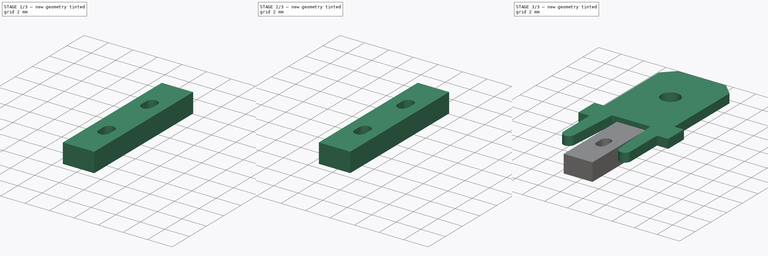
[diagram: build sequence overview — one tinted view per stage of 3, left to right]
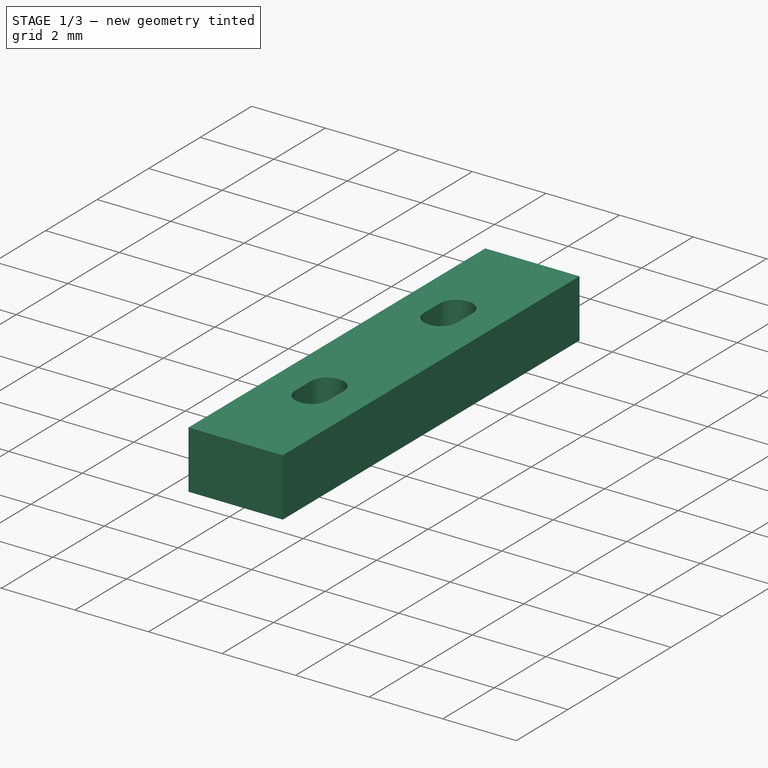
[diagram: stage 1 of 3 — iso view after this stage's code; geometry added in this stage tinted green]
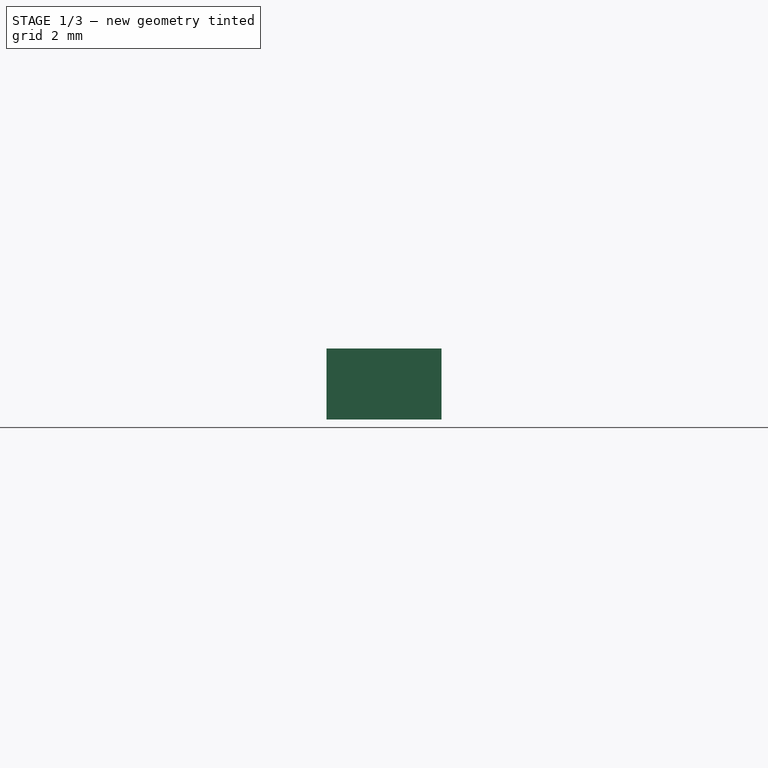
[diagram: stage 1 of 3 — front view after this stage's code; geometry added in this stage tinted green]
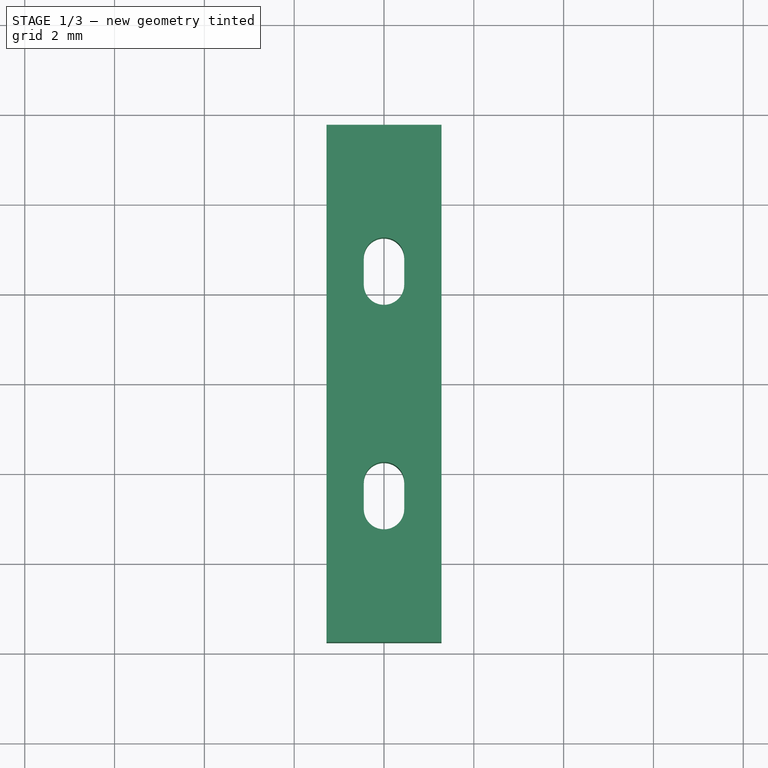
[diagram: stage 1 of 3 — top view after this stage's code; geometry added in this stage tinted green]
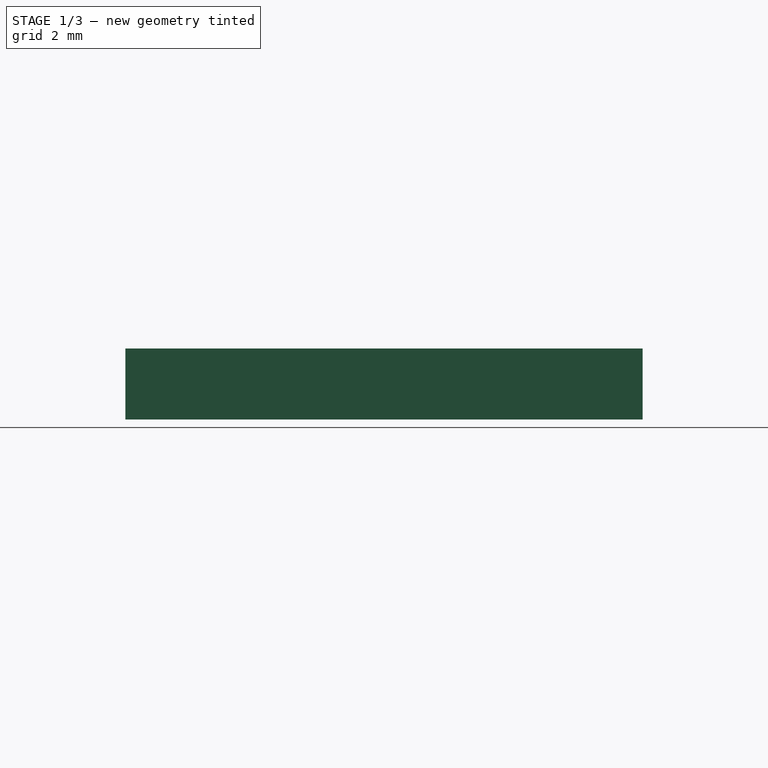
[diagram: stage 1 of 3 — right view after this stage's code; geometry added in this stage tinted green]
FCSTD DOCUMENT  (FreeCAD 0.17R13541 (Git))
Label: FLAT-TERM-6.3-STRAIGHT_ksu
License: All rights reserved
LicenseURL: http://fr.wikipedia.org/wiki/<copyright redacted>
objects: Part::FeaturePython×4, Sketcher::SketchObject×2, PartDesign::Pad×1, PartDesign::Body×1, App::DocumentObjectGroup×1, Part::Feature×1
note: 10 computed .brp shape members not serialized (recipe doc carries the construction recipe); baked Part::Feature solids carry a one-line shape summary decoded from their .brp

FEATURE [Part::FeaturePython] THPs001  label="PTHs001"  # a2plus imported part (geometry in sourceFile) (typed FeaturePython)
  fixedPosition = true
FEATURE [Part::FeaturePython] newPCB001  label="Pcb001"  # a2plus imported part (geometry in sourceFile) (typed FeaturePython)
  fixedPosition = true
FEATURE [App::DocumentObjectGroup] FLAT_TERM_6_3_STRAIGHT_fp001
  Group = -> [TopPads001,BotPads001,THPs001,newPCB001]
FEATURE [Part::Feature] Shape  label="FLAT-TERM-6.3-STRAIGHT"
  shape: bbox 0.8 x 8 x 13.85 mm, 23 faces (baked)
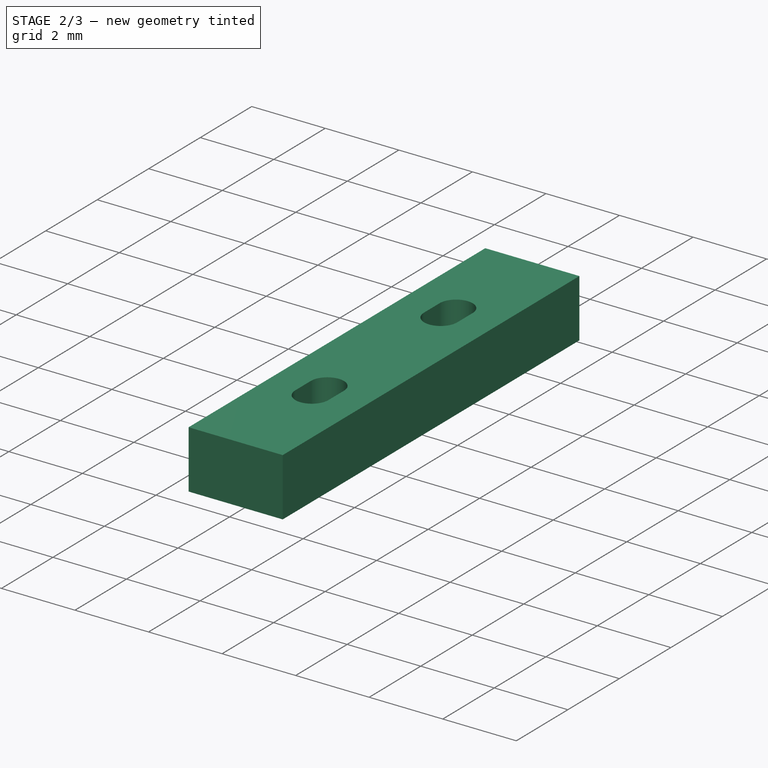
[diagram: stage 2 of 3 — iso view after this stage's code; geometry added in this stage tinted green]
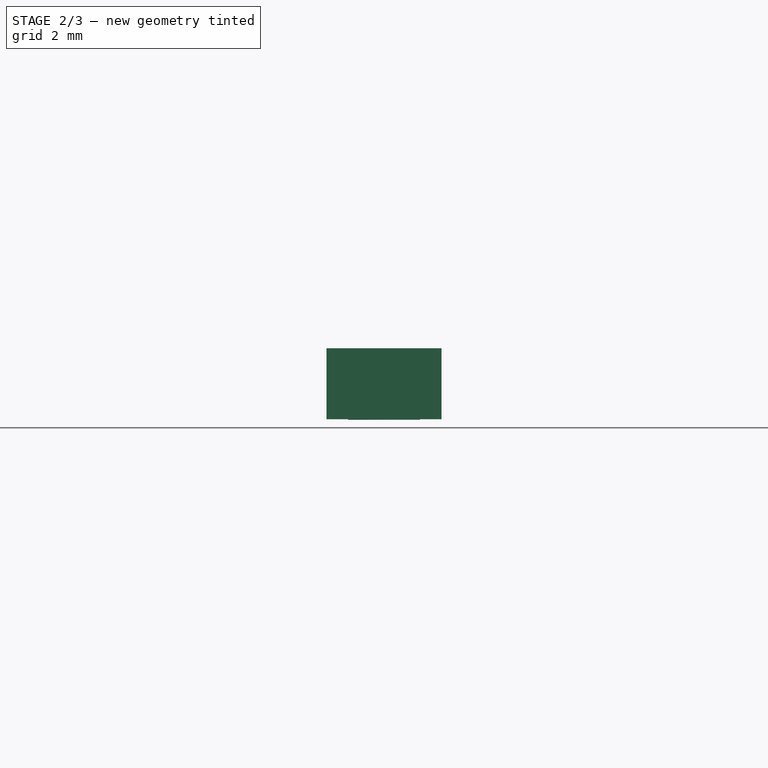
[diagram: stage 2 of 3 — front view after this stage's code; geometry added in this stage tinted green]
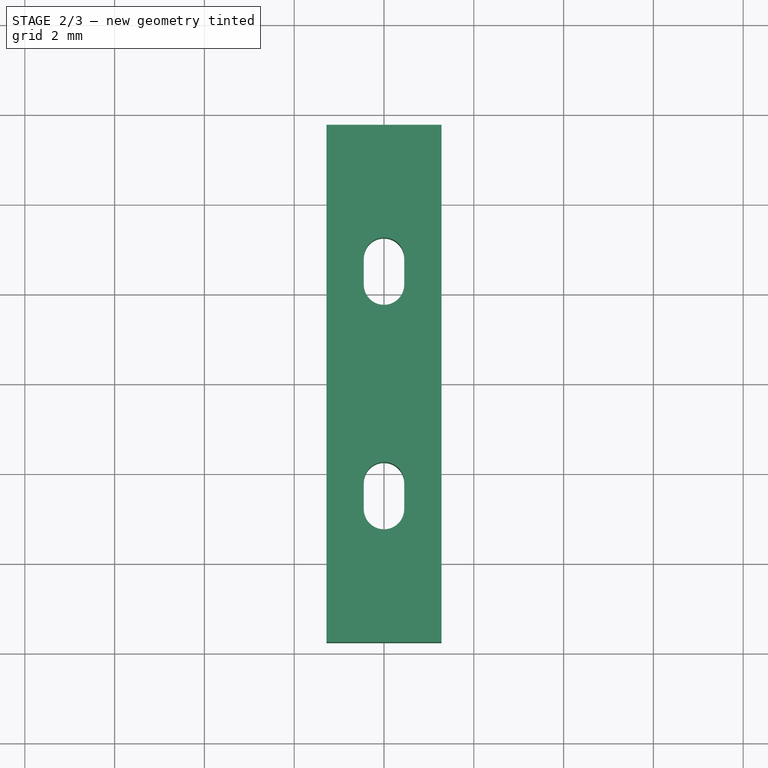
[diagram: stage 2 of 3 — top view after this stage's code; geometry added in this stage tinted green]
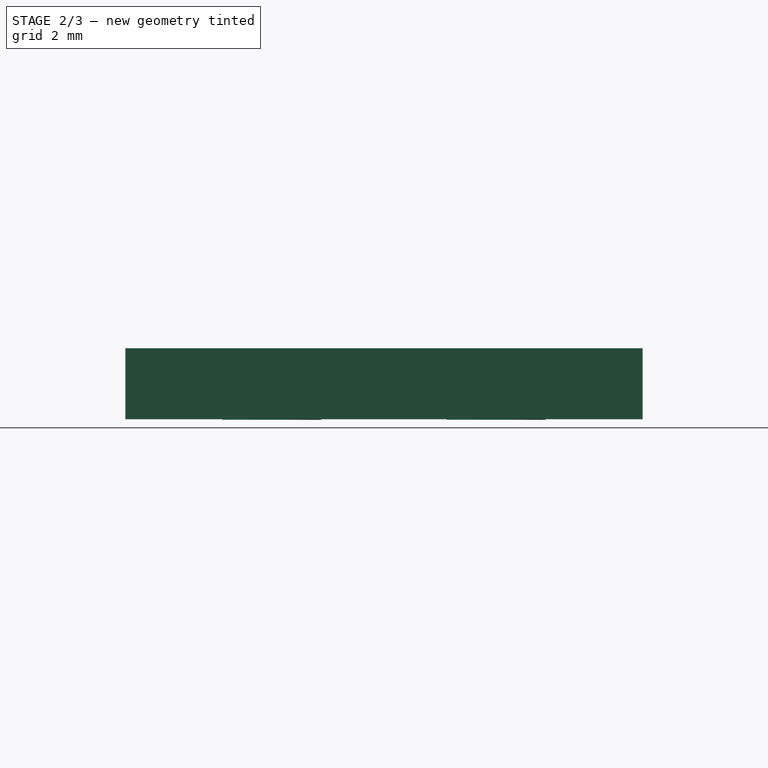
[diagram: stage 2 of 3 — right view after this stage's code; geometry added in this stage tinted green]
FEATURE [Part::FeaturePython] BotPads001  # a2plus imported part (geometry in sourceFile) (typed FeaturePython)
  fixedPosition = true
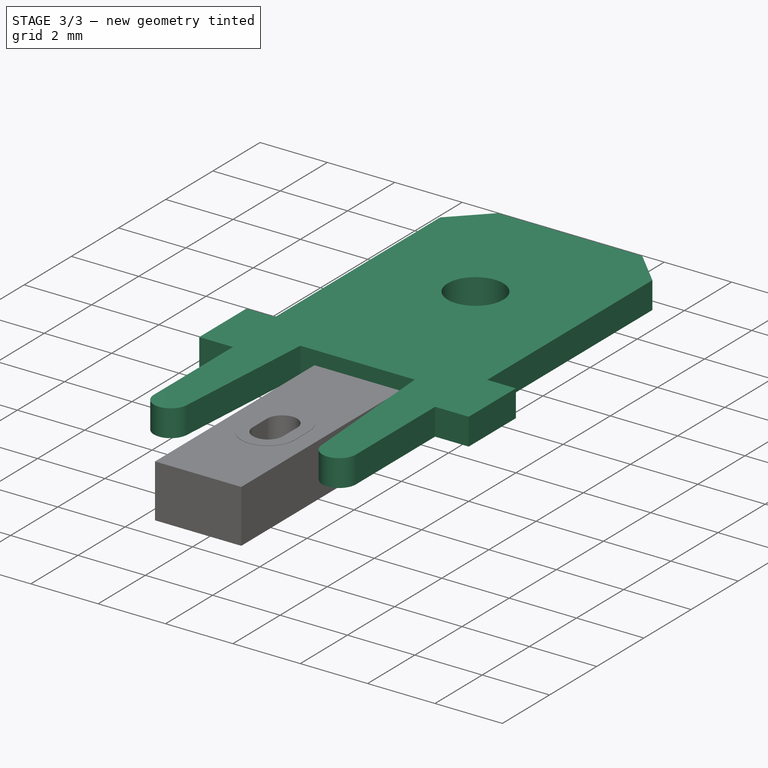
[diagram: stage 3 of 3 — iso view after this stage's code; geometry added in this stage tinted green]
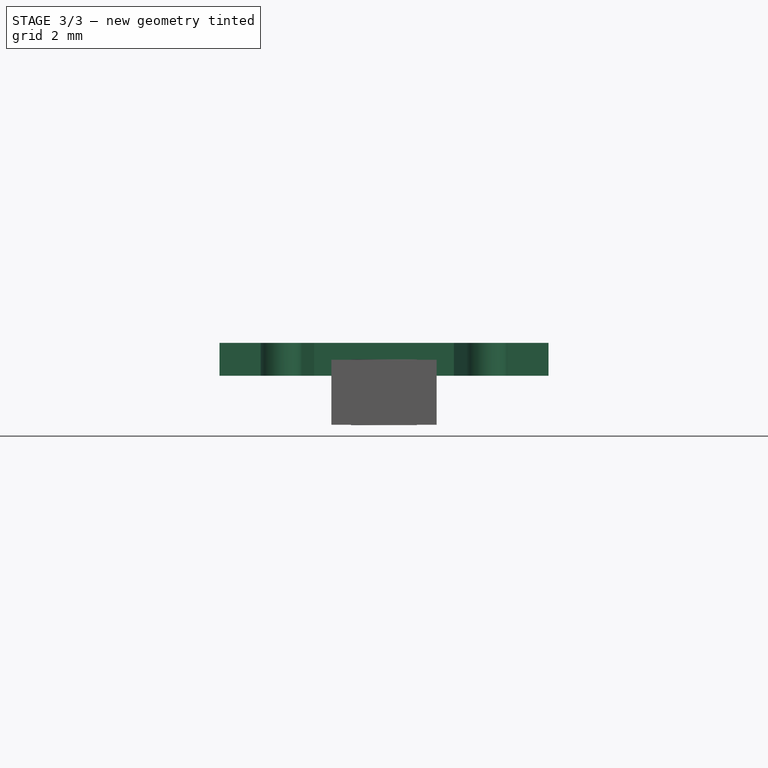
[diagram: stage 3 of 3 — front view after this stage's code; geometry added in this stage tinted green]
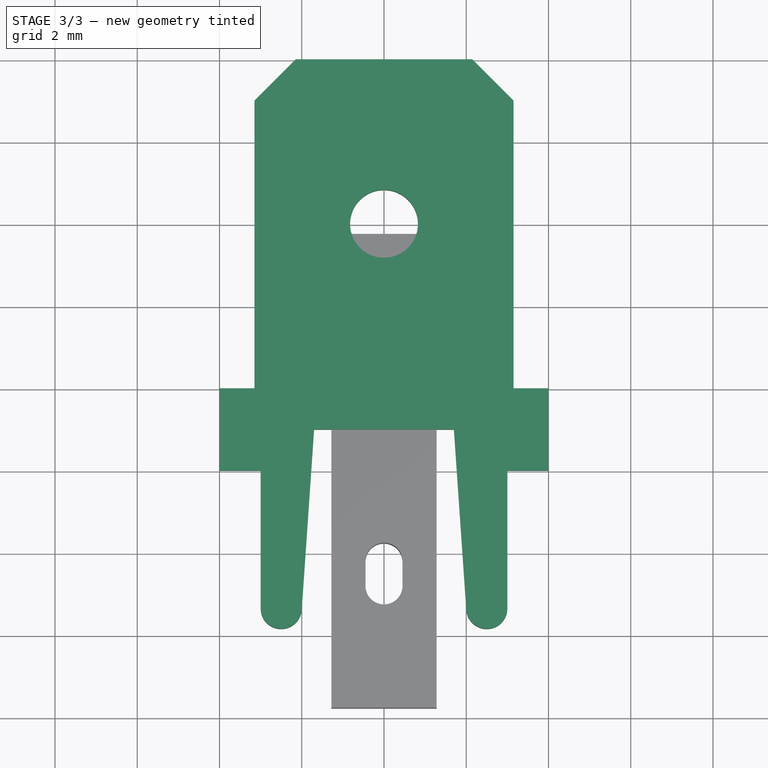
[diagram: stage 3 of 3 — top view after this stage's code; geometry added in this stage tinted green]
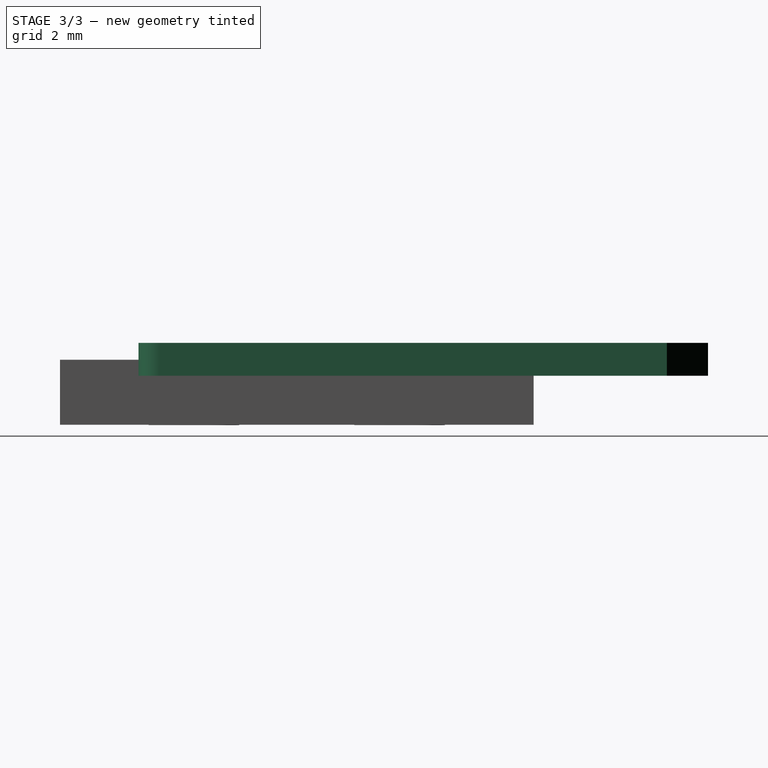
[diagram: stage 3 of 3 — right view after this stage's code; geometry added in this stage tinted green]
FEATURE [Sketcher::SketchObject] Sketch
  MapMode = 5
  Support = -> [XY_Plane]
  expr: Constraints[51] = 1.6499999999999999 / 2
  expr: Constraints[43] = 4 - 1.3 / 2
  expr: Constraints[36] = 180 - 45
  sketch-geometry (19):
    g0: LineSegment StartX=-4 StartY=0 StartZ=0 EndX=-4 EndY=2 EndZ=0
    g1: LineSegment StartX=-4 StartY=2 StartZ=0 EndX=-3.15 EndY=2 EndZ=0
    g2: LineSegment StartX=-3.15 StartY=2 StartZ=0 EndX=-3.15 EndY=9 EndZ=0
    g3: LineSegment StartX=-3.15 StartY=9 StartZ=0 EndX=-2.15 EndY=10 EndZ=0
    g4: LineSegment StartX=-2.15 StartY=10 StartZ=0 EndX=2.15 EndY=10 EndZ=0
    g5: LineSegment StartX=2.15 StartY=10 StartZ=0 EndX=3.15 EndY=9 EndZ=0
    g6: LineSegment StartX=3.15 StartY=9 StartZ=0 EndX=3.15 EndY=2 EndZ=0
    g7: LineSegment StartX=3.15 StartY=2 StartZ=0 EndX=4 EndY=2 EndZ=0
    g8: LineSegment StartX=4 StartY=2 StartZ=0 EndX=4 EndY=0 EndZ=0
    g9: LineSegment StartX=4 StartY=0 StartZ=0 EndX=3 EndY=0 EndZ=0
    g10: LineSegment StartX=3 StartY=0 StartZ=0 EndX=3 EndY=-3.35 EndZ=0
    g11: ArcOfCircle CenterX=2.5 CenterY=-3.35 CenterZ=0 NormalX=0 NormalY=0 NormalZ=1 AngleXU=0 Radius=0.5 StartAngle=3.21018 EndAngle=6.28319
    g12: LineSegment StartX=2.00118 StartY=-3.38427 StartZ=0 EndX=1.7 EndY=1 EndZ=0
    g13: LineSegment StartX=1.7 StartY=1 StartZ=0 EndX=-1.7 EndY=1 EndZ=0
    g14: LineSegment StartX=-1.7 StartY=1 StartZ=0 EndX=-2.00118 EndY=-3.38427 EndZ=0
    g15: ArcOfCircle CenterX=-2.5 CenterY=-3.35 CenterZ=0 NormalX=0 NormalY=0 NormalZ=1 AngleXU=0 Radius=0.5 StartAngle=3.14159 EndAngle=6.2146
    g16: LineSegment StartX=-3 StartY=-3.35 StartZ=0 EndX=-3 EndY=0 EndZ=0
    g17: LineSegment StartX=-3 StartY=0 StartZ=0 EndX=-4 EndY=0 EndZ=0
    g18: Circle CenterX=0 CenterY=6 CenterZ=0 NormalX=0 NormalY=0 NormalZ=1 AngleXU=0 Radius=0.825
  constraints (52):
    c: Vertical(g0)
    c: Coincident(g0,g1)
    c: Coincident(g1,g2)
    c: Vertical(g2)
    c: Coincident(g2,g3)
    c: Coincident(g3,g4)
    c: Horizontal(g4)
    c: Coincident(g4,g5)
    c: Coincident(g5,g6)
    c: Vertical(g6)
    c: Coincident(g6,g7)
    c: Horizontal(g7)
    c: Coincident(g7,g8)
    c: Vertical(g8)
    c: Coincident(g8,g9)
    c: Horizontal(g9)
    c: Coincident(g9,g10)
    c: Vertical(g10)
    c: Tangent(g11,g12) = 1.5708
    c: Coincident(g12,g13)
    c: Coincident(g13,g14)
    c: Tangent(g15,g16) = 1.5708
    c: Coincident(g16,g17)
    c: Coincident(g17,g0)
    c: Horizontal(g17)
    c: DistanceX(g15,g11) = 5
    c: DistanceX(g0,g8) = 8
    c: DistanceX(g2,g5) = 6.3
    c: DistanceY(g1,g3) = 8
    c: Horizontal(g1)
    c: DistanceY(g16,g13) = 1
    c: DistanceY(g9,g12) = 1
    c: DistanceY(g0,g0) = 2
    c: DistanceY(g8,g8) = 2
    c: Symmetric(g13,g12,g-2)
    c: Symmetric(g15,g11,g-2)
    c: Angle(g2,g3) = 2.35619
    c: Angle(g5,g6) = 2.35619
    c: Symmetric(g2,g5,g-2)
    c: Symmetric(g0,g7,g-2)
    c: Tangent(g15,g14) = 1.5708
    c: Tangent(g11,g10) = 1.5708
    c: Vertical(g16)
    c: DistanceY(g15,g0) = 3.35
    c: PointOnObject(g16,g-1)
    c: DistanceY(g2,g3) = 1
    c: DistanceX(g16,g13) = 1.3
    c: Radius(g15) = 0.5
    c: Radius(g11) = 0.5
    c: PointOnObject(g18,g-2)
    c: DistanceY(g18,g3) = 4
    c: Radius(g18) = 0.825
FEATURE [PartDesign::Pad] Pad
  Length = 0.8
  Length2 = 100
  Midplane = true
  Profile = -> Sketch
  Type = 0
FEATURE [Sketcher::SketchObject] Sketch001
  MapMode = 5
  Placement = pos=(-3.15,0,0) rot=(0.57735,-0.57735,-0.57735;2.0944rad)
  Support = -> [Pad]
  sketch-geometry (8):
    g0: LineSegment StartX=-9 StartY=0.4 StartZ=0 EndX=-9 EndY=1 EndZ=0
    g1: LineSegment StartX=-9 StartY=1 StartZ=0 EndX=-11 EndY=1 EndZ=0
    g2: LineSegment StartX=-11 StartY=1 StartZ=0 EndX=-11 EndY=-1 EndZ=0
    g3: LineSegment StartX=-11 StartY=-1 StartZ=0 EndX=-9 EndY=-1 EndZ=0
    g4: LineSegment StartX=-9 StartY=-1 StartZ=0 EndX=-9 EndY=-0.4 EndZ=0
    g5: LineSegment StartX=-9 StartY=-0.4 StartZ=0 EndX=-10 EndY=-0.2 EndZ=0
    g6: LineSegment StartX=-10 StartY=-0.2 StartZ=0 EndX=-10 EndY=0.2 EndZ=0
    g7: LineSegment StartX=-10 StartY=0.2 StartZ=0 EndX=-9 EndY=0.4 EndZ=0
  constraints (23):
    c: Vertical(g0)
    c: Coincident(g0,g1)
    c: Horizontal(g1)
    c: Coincident(g1,g2)
    c: Vertical(g2)
    c: Coincident(g2,g3)
    c: Horizontal(g3)
    c: Coincident(g3,g4)
    c: Vertical(g4)
    c: Coincident(g5,g6)
    c: Vertical(g6)
    c: Coincident(g6,g7)
    c: Symmetric(g2,g1,g-1)
    c: Equal(g7,g5)
    c: DistanceX(g6,g7) = 1
    c: DistanceY(g4,g0) = 0.8
    c: DistanceY(g6,g6) = 0.4
    c: DistanceX(g6,g-1) = 10
    c: DistanceX(g1,g1) = 2
    c: DistanceY(g2,g2) = 2
    c: Coincident(g0,g7)
    c: Coincident(g4,g5)
    c: Symmetric(g4,g0,g-1)
FEATURE [PartDesign::Body] Body
  Group = -> [Sketch,Pad,Sketch001]
  Origin = -> Origin
FEATURE [Part::FeaturePython] TopPads001  # a2plus imported part (geometry in sourceFile) (typed FeaturePython)
  fixedPosition = true
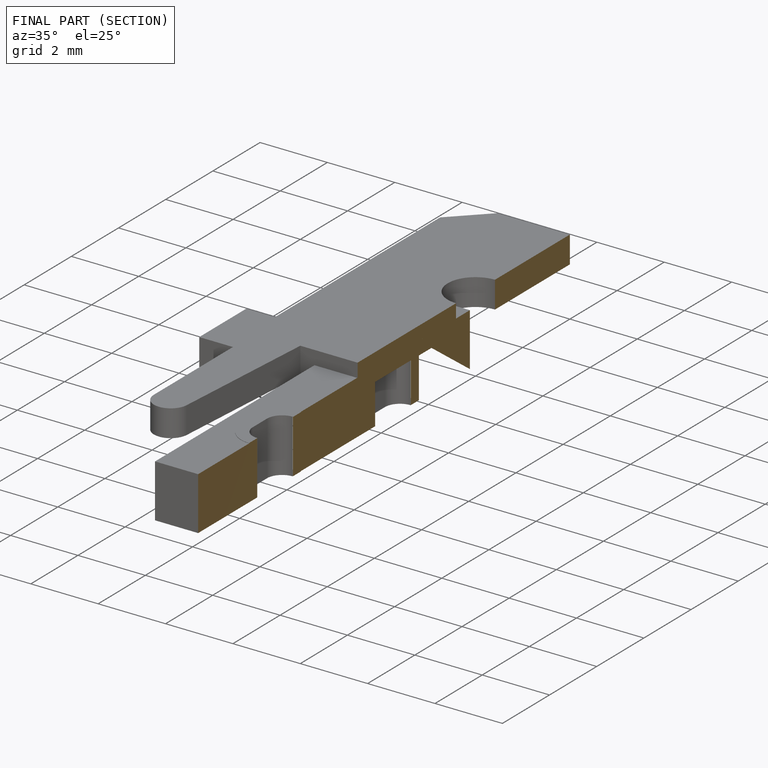
[diagram: finished part — half-section view (interior)]
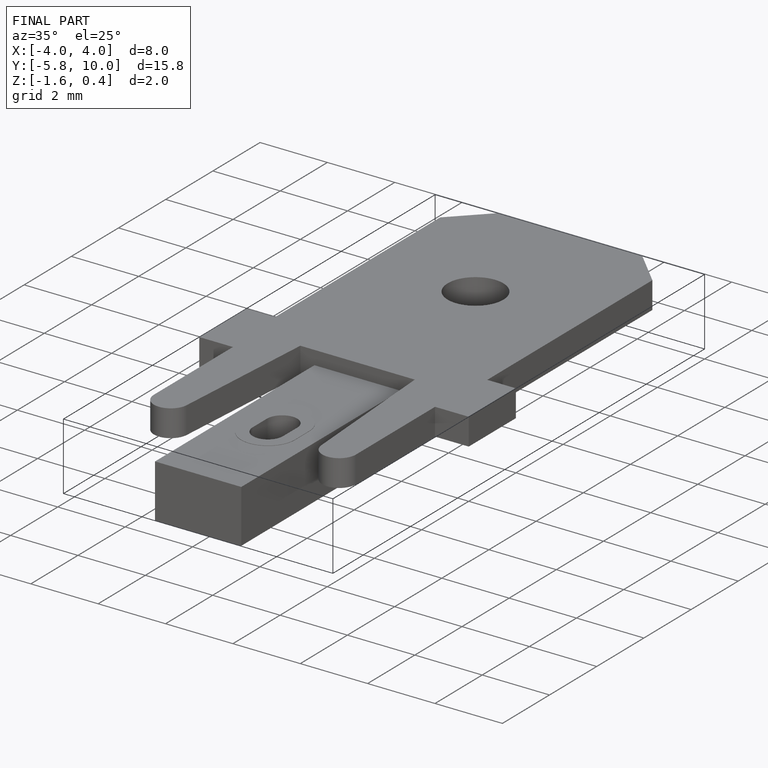
[diagram: finished part — iso view with bounding-box wireframe]
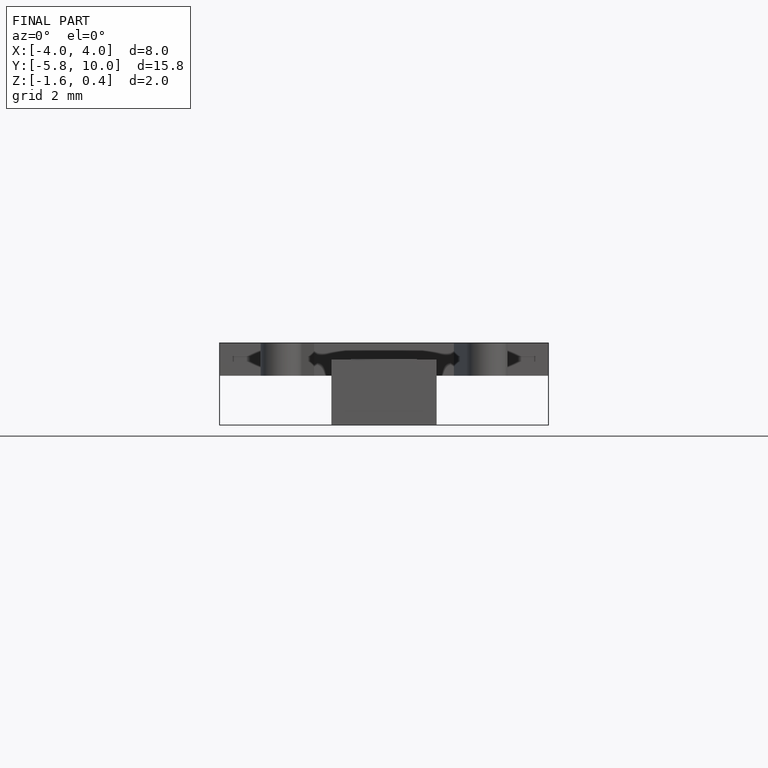
[diagram: finished part — front view with bounding-box wireframe]
